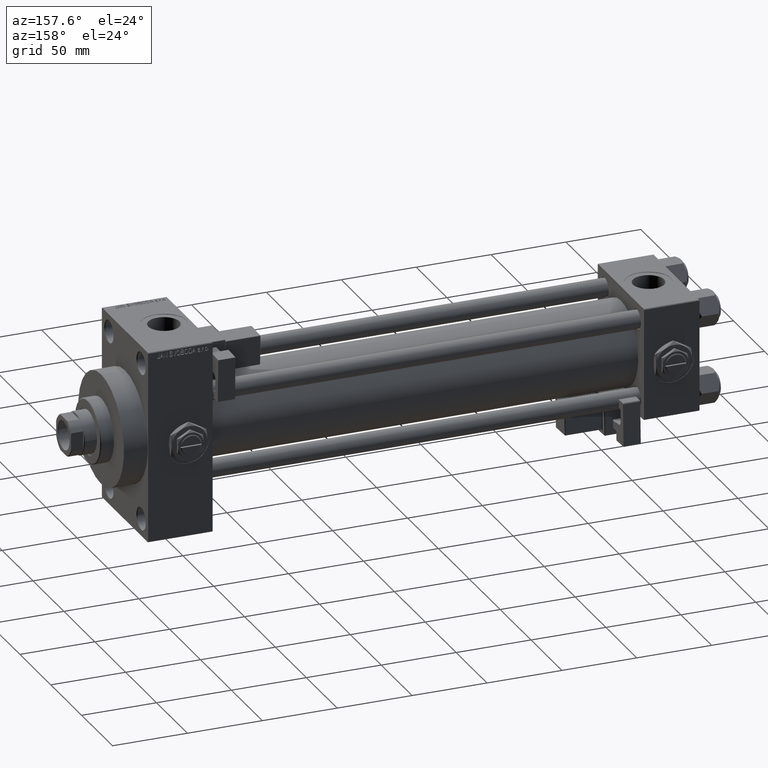
[diagram: clean part render]
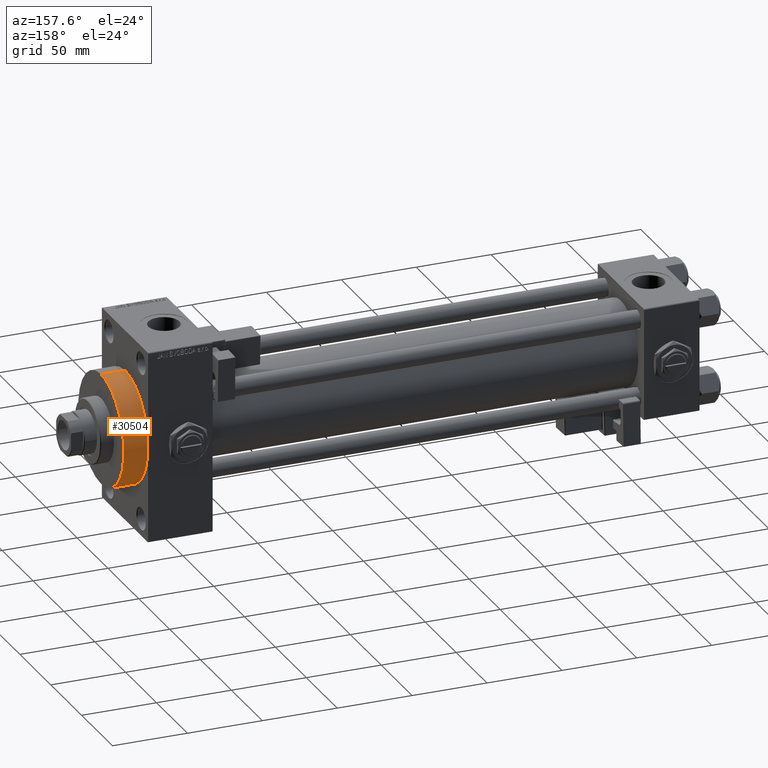
[diagram: same view with one face highlighted and labeled with its STEP entity id]
A machine part, auxiliary view. The second image highlights one B-rep face of the part: STEP entity #30504.
In plain terms, the highlighted cylindrical surface (partial cylindrical patch) has radius 37 mm, axis along (-1, -0, -0).
Its self-contained STEP definition (entity closure, byte-faithful):
#1324 = CARTESIAN_POINT ( 'NONE',  ( 383.9999999999999432, 4.531193156845206793E-15, -37.00000000000000000 ) ) ;
#1617 = EDGE_CURVE ( 'NONE', #2772, #46417, #9751, .T. ) ;
#1862 = ORIENTED_EDGE ( 'NONE', *, *, #13582, .F. ) ;
#2772 = VERTEX_POINT ( 'NONE', #39782 ) ;
#3406 = VERTEX_POINT ( 'NONE', #15350 ) ;
#7378 = ORIENTED_EDGE ( 'NONE', *, *, #10634, .T. ) ;
#7579 = VERTEX_POINT ( 'NONE', #34139 ) ;
#8292 = VECTOR ( 'NONE', #29202, 1000.000000000000000 ) ;
#8695 = CYLINDRICAL_SURFACE ( 'NONE', #36745, 37.00000000000000000 ) ;
#9751 = CIRCLE ( 'NONE', #28030, 37.00000000000000000 ) ;
#10634 = EDGE_CURVE ( 'NONE', #7579, #2772, #21123, .T. ) ;
#12607 = DIRECTION ( 'NONE',  ( -1.000000000000000000, -0.000000000000000000, -0.000000000000000000 ) ) ;
#13582 = EDGE_CURVE ( 'NONE', #7579, #3406, #25877, .T. ) ;
#15144 = DIRECTION ( 'NONE',  ( 0.000000000000000000, 0.000000000000000000, -1.000000000000000000 ) ) ;
#15350 = CARTESIAN_POINT ( 'NONE',  ( 383.9999999999999432, 0.000000000000000000, 37.00000000000000000 ) ) ;
#16489 = DIRECTION ( 'NONE',  ( 0.000000000000000000, 0.000000000000000000, -1.000000000000000000 ) ) ;
#17561 = EDGE_CURVE ( 'NONE', #3406, #46417, #24314, .T. ) ;
#20394 = CARTESIAN_POINT ( 'NONE',  ( 367.9999999999999432, 0.000000000000000000, 0.000000000000000000 ) ) ;
#21123 = LINE ( 'NONE', #1324, #8292 ) ;
#23245 = ORIENTED_EDGE ( 'NONE', *, *, #17561, .F. ) ;
#24050 = FACE_OUTER_BOUND ( 'NONE', #48597, .T. ) ;
#24314 = LINE ( 'NONE', #48494, #45623 ) ;
#25102 = CARTESIAN_POINT ( 'NONE',  ( 367.9999999999999432, 0.000000000000000000, 37.00000000000000000 ) ) ;
#25877 = CIRCLE ( 'NONE', #42458, 37.00000000000000000 ) ;
#28030 = AXIS2_PLACEMENT_3D ( 'NONE', #20394, #36269, #16489 ) ;
#28217 = DIRECTION ( 'NONE',  ( -1.000000000000000000, -0.000000000000000000, -0.000000000000000000 ) ) ;
#29202 = DIRECTION ( 'NONE',  ( -1.000000000000000000, -0.000000000000000000, -0.000000000000000000 ) ) ;
#30504 = ADVANCED_FACE ( 'NONE', ( #24050 ), #8695, .T. ) ;
#30777 = CARTESIAN_POINT ( 'NONE',  ( 383.9999999999999432, 0.000000000000000000, 0.000000000000000000 ) ) ;
#34139 = CARTESIAN_POINT ( 'NONE',  ( 383.9999999999999432, 4.531193156845206793E-15, -37.00000000000000000 ) ) ;
#34918 = DIRECTION ( 'NONE',  ( 1.000000000000000000, 0.000000000000000000, 0.000000000000000000 ) ) ;
#36269 = DIRECTION ( 'NONE',  ( 1.000000000000000000, 0.000000000000000000, 0.000000000000000000 ) ) ;
#36745 = AXIS2_PLACEMENT_3D ( 'NONE', #47970, #28217, #48485 ) ;
#39782 = CARTESIAN_POINT ( 'NONE',  ( 367.9999999999999432, 4.531193156845206793E-15, -37.00000000000000000 ) ) ;
#42458 = AXIS2_PLACEMENT_3D ( 'NONE', #30777, #34918, #15144 ) ;
#43050 = ORIENTED_EDGE ( 'NONE', *, *, #1617, .T. ) ;
#45623 = VECTOR ( 'NONE', #12607, 1000.000000000000000 ) ;
#46417 = VERTEX_POINT ( 'NONE', #25102 ) ;
#47970 = CARTESIAN_POINT ( 'NONE',  ( 383.9999999999999432, 0.000000000000000000, 0.000000000000000000 ) ) ;
#48485 = DIRECTION ( 'NONE',  ( 0.000000000000000000, 0.000000000000000000, 1.000000000000000000 ) ) ;
#48494 = CARTESIAN_POINT ( 'NONE',  ( 383.9999999999999432, 0.000000000000000000, 37.00000000000000000 ) ) ;
#48597 = EDGE_LOOP ( 'NONE', ( #1862, #7378, #43050, #23245 ) ) ;